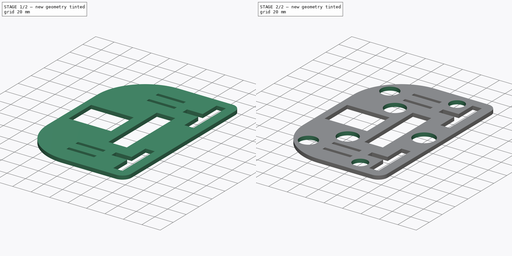
[diagram: build sequence overview — one tinted view per stage of 2, left to right]
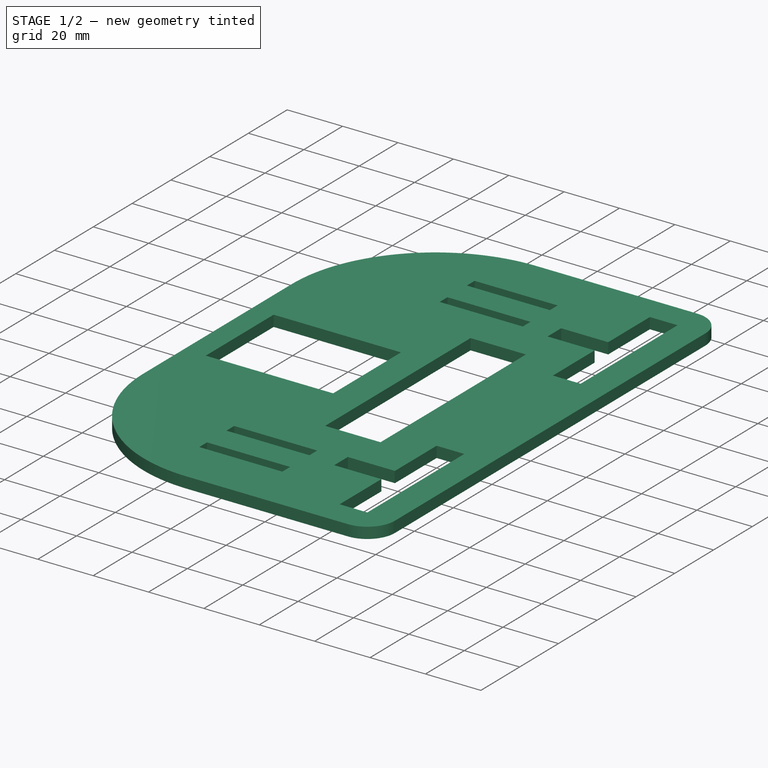
[diagram: stage 1 of 2 — iso view after this stage's code; geometry added in this stage tinted green]
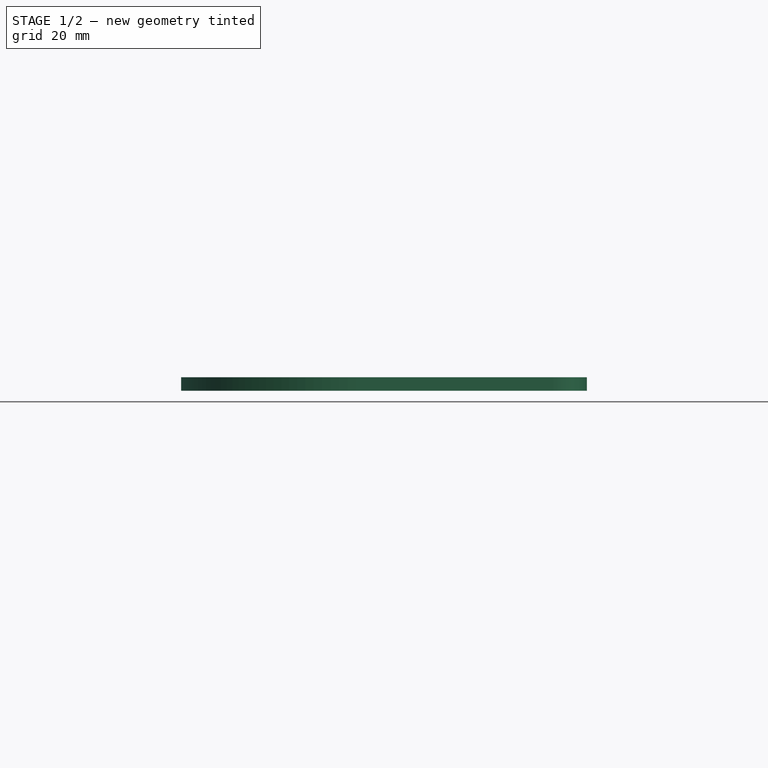
[diagram: stage 1 of 2 — front view after this stage's code; geometry added in this stage tinted green]
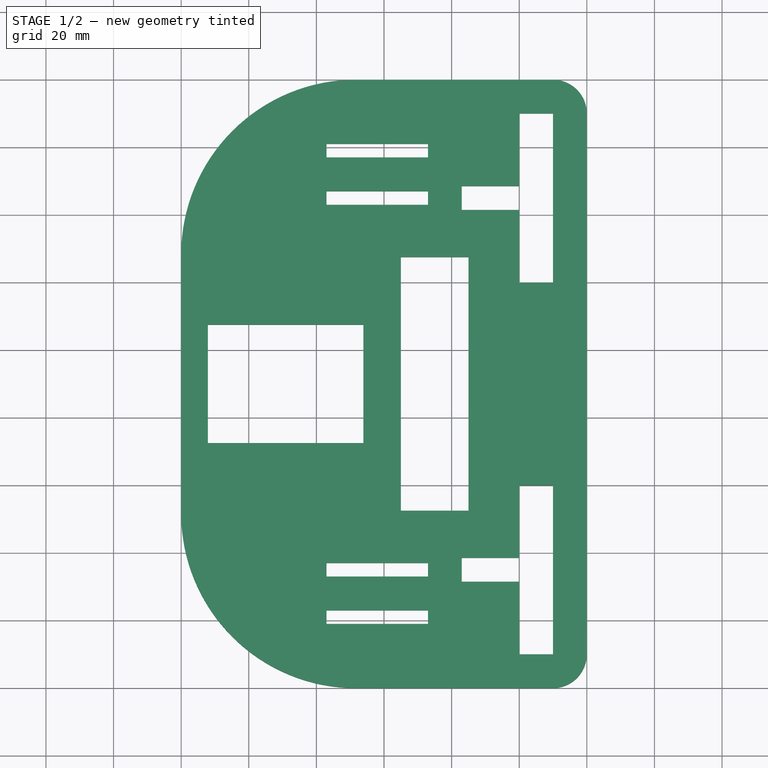
[diagram: stage 1 of 2 — top view after this stage's code; geometry added in this stage tinted green]
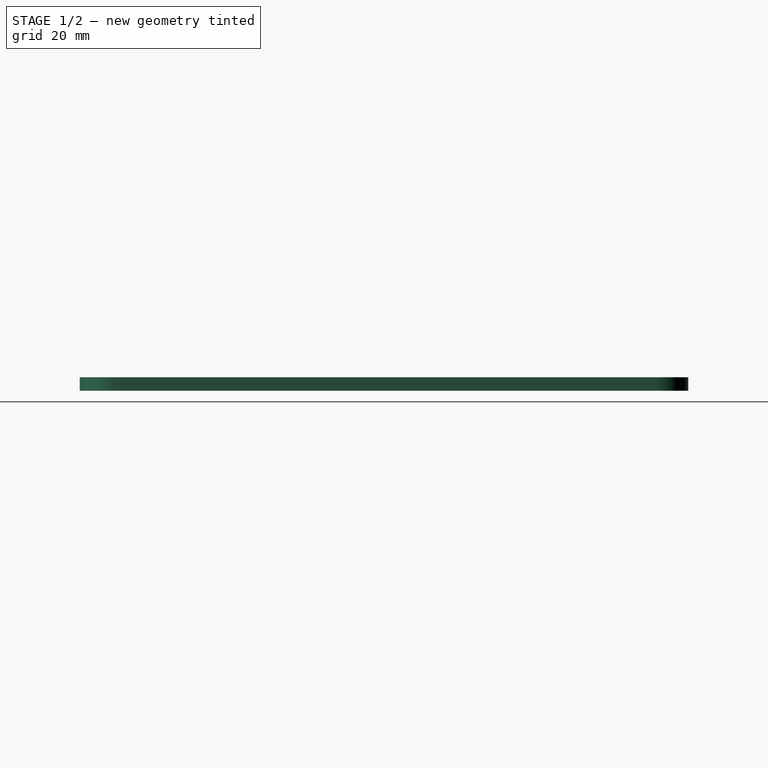
[diagram: stage 1 of 2 — right view after this stage's code; geometry added in this stage tinted green]
FCSTD DOCUMENT  (FreeCAD 0.21R33771 (Git))
Label: FRAME_BASE_T02
License: All rights reserved
LicenseURL: https://en.wikipedia.org/wiki/All_rights_reserved
objects: Sketcher::SketchObject×4, PartDesign::Pocket×2, PartDesign::Pad×1, PartDesign::Body×1
note: 11 computed .brp shape members not serialized (recipe doc carries the construction recipe); baked Part::Feature solids carry a one-line shape summary decoded from their .brp

FEATURE [Sketcher::SketchObject] Sketch  label="A4"
  FullyConstrained = true
  MapMode = 5
  sketch-geometry (4):
    g0: LineSegment StartX=0 StartY=0 StartZ=0 EndX=270 EndY=0 EndZ=0
    g1: LineSegment StartX=270 StartY=0 StartZ=0 EndX=270 EndY=180 EndZ=0
    g2: LineSegment StartX=270 StartY=180 StartZ=0 EndX=0 EndY=180 EndZ=0
    g3: LineSegment StartX=0 StartY=180 StartZ=0 EndX=0 EndY=0 EndZ=0
  constraints (12):
    c: Coincident(g0,g1)
    c: Coincident(g1,g2)
    c: Coincident(g2,g3)
    c: Coincident(g3,g0)
    c: Horizontal(g0)
    c: Horizontal(g2)
    c: Vertical(g1)
    c: Vertical(g3)
    c: PointOnObject(g0,g-2)
    c: DistanceX(g2,g2) = 270
    c: DistanceY(g3,g3) = 180
    c: PointOnObject(g0,g-1)
FEATURE [Sketcher::SketchObject] Sketch001  label="BASE"
  ExternalGeometry = -> [Sketch]
  FullyConstrained = false
  MapMode = 5
  sketch-geometry (57):
    g0: LineSegment StartX=100 StartY=60 StartZ=0 EndX=100 EndY=38.5 EndZ=0
    g1: LineSegment StartX=100 StartY=38.5 StartZ=0 EndX=83 EndY=38.5 EndZ=0
    g2: LineSegment StartX=83 StartY=38.5 StartZ=0 EndX=83 EndY=31.5 EndZ=0
    g3: LineSegment StartX=83 StartY=31.5 StartZ=0 EndX=100 EndY=31.5 EndZ=0
    g4: LineSegment StartX=100 StartY=31.5 StartZ=0 EndX=100 EndY=10 EndZ=0
    g5: LineSegment StartX=100 StartY=10 StartZ=0 EndX=110 EndY=10 EndZ=0
    g6: LineSegment StartX=110 StartY=10 StartZ=0 EndX=110 EndY=60 EndZ=0
    g7: LineSegment StartX=110 StartY=60 StartZ=0 EndX=100 EndY=60 EndZ=0
    g8: LineSegment StartX=100 StartY=120 StartZ=0 EndX=110 EndY=120 EndZ=0
    g9: LineSegment StartX=110 StartY=120 StartZ=0 EndX=110 EndY=170 EndZ=0
    g10: LineSegment StartX=110 StartY=170 StartZ=0 EndX=100 EndY=170 EndZ=0
    g11: LineSegment StartX=100 StartY=170 StartZ=0 EndX=100 EndY=148.5 EndZ=0
    g12: LineSegment StartX=100 StartY=148.5 StartZ=0 EndX=83 EndY=148.5 EndZ=0
    g13: LineSegment StartX=83 StartY=148.5 StartZ=0 EndX=83 EndY=141.5 EndZ=0
    g14: LineSegment StartX=83 StartY=141.5 StartZ=0 EndX=100 EndY=141.5 EndZ=0
    g15: LineSegment StartX=100 StartY=141.5 StartZ=0 EndX=100 EndY=120 EndZ=0
    g16: LineSegment StartX=0 StartY=90 StartZ=0 EndX=0 EndY=128.268 EndZ=0
    g17: LineSegment StartX=51.7316 StartY=180 StartZ=0 EndX=110 EndY=180 EndZ=0
    g18: LineSegment StartX=120 StartY=170 StartZ=0 EndX=120 EndY=10 EndZ=0
    g19: LineSegment StartX=110 StartY=0 StartZ=0 EndX=51.7316 EndY=0 EndZ=0
    g20: LineSegment StartX=0 StartY=51.7316 StartZ=0 EndX=0 EndY=90 EndZ=0
    g21: ArcOfCircle CenterX=51.7316 CenterY=128.268 CenterZ=0 NormalX=0 NormalY=0 NormalZ=1 AngleXU=0 Radius=51.7316 StartAngle=1.5708 EndAngle=3.14159
    g22: GeomPoint X=0 Y=180 Z=0
    g23: ArcOfCircle CenterX=51.7316 CenterY=51.7316 CenterZ=0 NormalX=0 NormalY=0 NormalZ=1 AngleXU=0 Radius=51.7316 StartAngle=3.14159 EndAngle=4.71239
    g24: GeomPoint X=0 Y=0 Z=0
    g25: ArcOfCircle CenterX=110 CenterY=170 CenterZ=0 NormalX=0 NormalY=0 NormalZ=1 AngleXU=0 Radius=10 StartAngle=-9e-16 EndAngle=1.5708
    g26: GeomPoint X=120 Y=180 Z=0
    g27: ArcOfCircle CenterX=110 CenterY=10 CenterZ=0 NormalX=0 NormalY=0 NormalZ=1 AngleXU=0 Radius=10 StartAngle=4.71239 EndAngle=6.28319
    g28: GeomPoint X=120 Y=0 Z=0
    g29: LineSegment StartX=73 StartY=37 StartZ=0 EndX=43 EndY=37 EndZ=0
    g30: LineSegment StartX=43 StartY=37 StartZ=0 EndX=43 EndY=33 EndZ=0
    g31: LineSegment StartX=43 StartY=33 StartZ=0 EndX=73 EndY=33 EndZ=0
    g32: LineSegment StartX=73 StartY=33 StartZ=0 EndX=73 EndY=35 EndZ=0
    g33: LineSegment StartX=73 StartY=35 StartZ=0 EndX=73 EndY=37 EndZ=0
    g34: LineSegment StartX=83 StartY=31.5 StartZ=0 EndX=73 EndY=35 EndZ=0
    g35: LineSegment StartX=73 StartY=35 StartZ=0 EndX=83 EndY=38.5 EndZ=0
    g36: LineSegment StartX=83 StartY=148.5 StartZ=0 EndX=73 EndY=145 EndZ=0
    g37: LineSegment StartX=83 StartY=141.5 StartZ=0 EndX=73 EndY=145 EndZ=0
    g38: LineSegment StartX=73 StartY=145 StartZ=0 EndX=73 EndY=147 EndZ=0
    g39: LineSegment StartX=73 StartY=143 StartZ=0 EndX=73 EndY=145 EndZ=0
    g40: LineSegment StartX=73 StartY=37 StartZ=0 EndX=73 EndY=145 EndZ=0
    g41: LineSegment StartX=73 StartY=147 StartZ=0 EndX=43 EndY=147 EndZ=0
    g42: LineSegment StartX=43 StartY=147 StartZ=0 EndX=43 EndY=143 EndZ=0
    g43: LineSegment StartX=43 StartY=143 StartZ=0 EndX=73 EndY=143 EndZ=0
    g44: LineSegment StartX=43 StartY=37 StartZ=0 EndX=43 EndY=143 EndZ=0
    g45: LineSegment StartX=43 StartY=161 StartZ=0 EndX=43 EndY=157 EndZ=0
    g46: LineSegment StartX=43 StartY=157 StartZ=0 EndX=73 EndY=157 EndZ=0
    g47: LineSegment StartX=73 StartY=157 StartZ=0 EndX=73 EndY=161 EndZ=0
    g48: LineSegment StartX=73 StartY=161 StartZ=0 EndX=43 EndY=161 EndZ=0
    g49: LineSegment StartX=43 StartY=23 StartZ=0 EndX=43 EndY=19 EndZ=0
    g50: LineSegment StartX=43 StartY=19 StartZ=0 EndX=73 EndY=19 EndZ=0
    g51: LineSegment StartX=73 StartY=19 StartZ=0 EndX=73 EndY=23 EndZ=0
    g52: LineSegment StartX=73 StartY=23 StartZ=0 EndX=43 EndY=23 EndZ=0
    g53: LineSegment StartX=43 StartY=23 StartZ=0 EndX=43 EndY=33 EndZ=0
    g54: LineSegment StartX=100 StartY=60 StartZ=0 EndX=100 EndY=90 EndZ=0
    g55: LineSegment StartX=100 StartY=90 StartZ=0 EndX=100 EndY=120 EndZ=0
    g56: LineSegment StartX=0 StartY=90 StartZ=0 EndX=100 EndY=90 EndZ=0
  constraints (155):
    c: Vertical(g0)
    c: Coincident(g1,g0)
    c: Coincident(g2,g1)
    c: Vertical(g2)
    c: Coincident(g3,g2)
    c: Horizontal(g3)
    c: Coincident(g4,g3)
    c: Vertical(g4)
    c: Coincident(g5,g4)
    c: Coincident(g6,g5)
    c: Vertical(g6)
    c: Coincident(g7,g6)
    c: Coincident(g7,g0)
    c: Horizontal(g7)
    c: Horizontal(g1)
    c: Horizontal(g5)
    c: Equal(g0,g4)
    c: Equal(g1,g3)
    c: DistanceY(g2,g2) = 7
    c: DistanceX(g1,g1) = 17
    c: DistanceX(g7,g7) = 10
    c: DistanceY(g6,g6) = 50
    c: Horizontal(g8)
    c: Coincident(g9,g8)
    c: Vertical(g9)
    c: PointOnObject(g10,g9)
    c: Horizontal(g10)
    c: Coincident(g11,g10)
    c: Vertical(g11)
    c: Coincident(g12,g11)
    c: Horizontal(g12)
    c: Coincident(g13,g12)
    c: Vertical(g13)
    c: Coincident(g14,g13)
    c: Horizontal(g14)
    c: Coincident(g15,g14)
    c: Vertical(g15)
    c: Equal(g15,g11)
    c: Equal(g14,g1)
    c: Equal(g8,g7)
    c: Equal(g13,g2)
    c: Vertical(g11,g14)
    c: PointOnObject(g9,g10)
    c: Equal(g6,g9)
    c: DistanceY(g0,g8) = 60
    c: Vertical(g16)
    c: Horizontal(g17)
    c: Vertical(g18)
    c: Horizontal(g19)
    c: Vertical(g20)
    c: DistanceX(g9,g26) = 10
    c: DistanceX(g24,g28) = 120
    c: DistanceY(g24,g22) = 180
    c: PointOnObject(g22,g16)
    c: PointOnObject(g22,g17)
    c: Tangent(g16,g21) = 1.5708
    c: Tangent(g17,g21) = 1.5708
    c: PointOnObject(g24,g20)
    c: PointOnObject(g24,g19)
    c: Tangent(g20,g23) = 1.5708
    c: Tangent(g19,g23) = 1.5708
    c: PointOnObject(g26,g17)
    c: PointOnObject(g26,g18)
    c: Tangent(g17,g25) = 1.5708
    c: Tangent(g18,g25) = 1.5708
    c: PointOnObject(g28,g19)
    c: PointOnObject(g28,g18)
    c: Tangent(g19,g27) = 1.5708
    c: Tangent(g18,g27) = 1.5708
    c: Equal(g20,g16)
    c: Equal(g25,g27)
    c: Radius(g27) = 10
    c: Horizontal(g29)
    c: Coincident(g30,g29)
    c: Vertical(g30)
    c: Coincident(g31,g30)
    c: Horizontal(g31)
    c: Coincident(g32,g31)
    c: Coincident(g33,g32)
    c: Coincident(g33,g29)
    c: Vertical(g32)
    c: Vertical(g33)
    c: Equal(g32,g33)
    c: Coincident(g34,g2)
    c: Coincident(g34,g32)
    c: Equal(g34,g35)
    c: Coincident(g35,g1)
    c: Coincident(g35,g32)
    c: DistanceY(g30,g30) = 4
    c: DistanceX(g31,g31) = 30
    c: DistanceX(g31,g2) = 10
    c: Coincident(g36,g12)
    c: Coincident(g37,g13)
    c: Coincident(g37,g36)
    c: Coincident(g38,g36)
    c: Vertical(g38)
    c: Coincident(g39,g36)
    c: Vertical(g39)
    c: Equal(g39,g38)
    c: Equal(g37,g36)
    c: Coincident(g40,g29)
    c: Vertical(g40)
    c: Vertical(g23,g21)
    c: Coincident(g40,g36)
    c: Coincident(g41,g38)
    c: Horizontal(g41)
    c: Coincident(g42,g41)
    c: Vertical(g42)
    c: Coincident(g43,g42)
    c: Coincident(g43,g39)
    c: Horizontal(g43)
    c: DistanceY(g42,g42) = 4
    c: Coincident(g44,g29)
    c: Coincident(g44,g42)
    c: Vertical(g44)
    c: Coincident(g45,g46)
    c: Coincident(g46,g47)
    c: Coincident(g47,g48)
    c: Coincident(g48,g45)
    c: Vertical(g45)
    c: Vertical(g47)
    c: Horizontal(g46)
    c: Horizontal(g48)
    c: Equal(g41,g46)
    c: Equal(g45,g42)
    c: Vertical(g45,g41)
    c: DistanceY(g41,g45) = 10
    c: Coincident(g49,g50)
    c: Coincident(g50,g51)
    c: Coincident(g51,g52)
    c: Coincident(g52,g49)
    c: Vertical(g49)
    c: Vertical(g51)
    c: Horizontal(g50)
    c: Horizontal(g52)
    c: Equal(g52,g31)
    c: Equal(g49,g30)
    c: Coincident(g53,g49)
    c: Coincident(g53,g30)
    c: Vertical(g53)
    c: DistanceY(g53,g53) = 10
    c: Coincident(g20,g16)
    c: PointOnObject(g19,g-1)
    c: PointOnObject(g16,g-2)
    c: Coincident(g54,g0)
    c: Vertical(g54)
    c: Coincident(g55,g54)
    c: Coincident(g55,g8)
    c: Vertical(g55)
    c: Equal(g55,g54)
    c: Coincident(g56,g16)
    c: Coincident(g56,g54)
    c: Horizontal(g56)
    c: Coincident(g15,g8)
    c: DistanceY(g44,g44) = 106
FEATURE [PartDesign::Pad] Pad
  Direction = (0,0,1)
  Length = 4
  Length2 = 10
  Profile = -> Sketch001
  ReferenceAxis = -> Sketch001 [N_Axis]
  Type = 0
FEATURE [Sketcher::SketchObject] Sketch002
  ExternalGeometry = -> [Pad]
  FullyConstrained = false
  MapMode = 5
  Placement = pos=(0,0,4) rot=(0,0,1;0rad)
  Support = -> [Pad]
  sketch-geometry (13):
    g0: LineSegment StartX=120 StartY=170 StartZ=0 EndX=146.961 EndY=90 EndZ=0
    g1: LineSegment StartX=146.961 StartY=90 StartZ=0 EndX=120 EndY=10 EndZ=0
    g2: LineSegment StartX=146.961 StartY=90 StartZ=0 EndX=0 EndY=90 EndZ=0
    g3: LineSegment StartX=85 StartY=52.5 StartZ=0 EndX=85 EndY=127.5 EndZ=0
    g4: LineSegment StartX=85 StartY=127.5 StartZ=0 EndX=65 EndY=127.5 EndZ=0
    g5: LineSegment StartX=65 StartY=127.5 StartZ=0 EndX=65 EndY=52.5 EndZ=0
    g6: LineSegment StartX=65 StartY=52.5 StartZ=0 EndX=85 EndY=52.5 EndZ=0
    g7: GeomPoint X=75 Y=90 Z=0
    g8: LineSegment StartX=7.89496 StartY=72.5 StartZ=0 EndX=7.89496 EndY=107.5 EndZ=0
    g9: LineSegment StartX=7.89496 StartY=107.5 StartZ=0 EndX=53.895 EndY=107.5 EndZ=0
    g10: LineSegment StartX=53.895 StartY=107.5 StartZ=0 EndX=53.895 EndY=72.5 EndZ=0
    g11: LineSegment StartX=53.895 StartY=72.5 StartZ=0 EndX=7.89496 EndY=72.5 EndZ=0
    g12: GeomPoint X=30.895 Y=90 Z=0
  constraints (32):
    c: Coincident(g0,g-3)
    c: Coincident(g1,g0)
    c: Coincident(g1,g-3)
    c: Equal(g1,g0)
    c: Coincident(g2,g0)
    c: PointOnObject(g2,g-2)
    c: Horizontal(g2)
    c: Coincident(g3,g4)
    c: Coincident(g4,g5)
    c: Coincident(g5,g6)
    c: Coincident(g6,g3)
    c: Horizontal(g4)
    c: Horizontal(g6)
    c: Vertical(g3)
    c: Vertical(g5)
    c: Symmetric(g4,g3,g7)
    c: PointOnObject(g7,g2)
    c: DistanceY(g3,g3) = 75
    c: DistanceX(g4,g4) = 20
    c: DistanceX(g2,g4) = 65
    c: Coincident(g8,g9)
    c: Coincident(g9,g10)
    c: Coincident(g10,g11)
    c: Coincident(g11,g8)
    c: Horizontal(g9)
    c: Horizontal(g11)
    c: Vertical(g8)
    c: Vertical(g10)
    c: Symmetric(g9,g8,g12)
    c: PointOnObject(g12,g2)
    c: DistanceX(g9,g9) = 46
    c: DistanceY(g10,g10) = 35
FEATURE [PartDesign::Pocket] Pocket
  BaseFeature = -> Pad
  Direction = (0,0,-1)
  Length = 5
  Length2 = 5
  Profile = -> Sketch002
  ReferenceAxis = -> Sketch002 [N_Axis]
  Type = 0
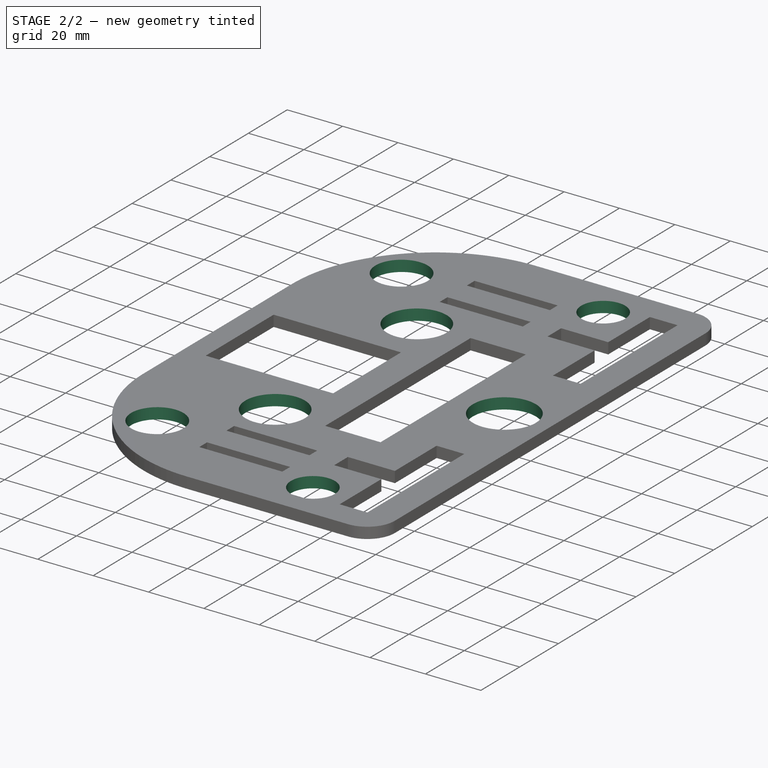
[diagram: stage 2 of 2 — iso view after this stage's code; geometry added in this stage tinted green]
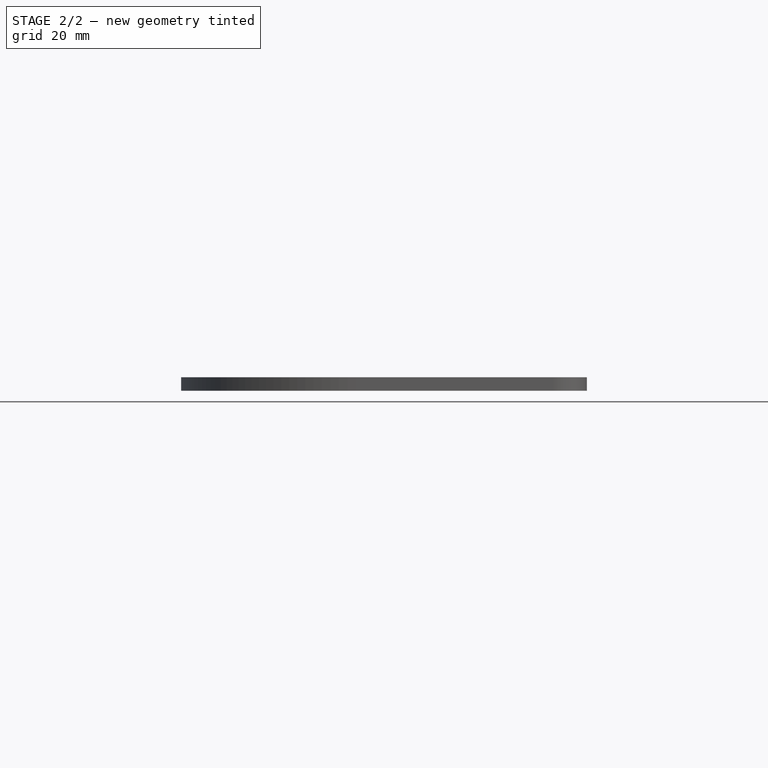
[diagram: stage 2 of 2 — front view after this stage's code; geometry added in this stage tinted green]
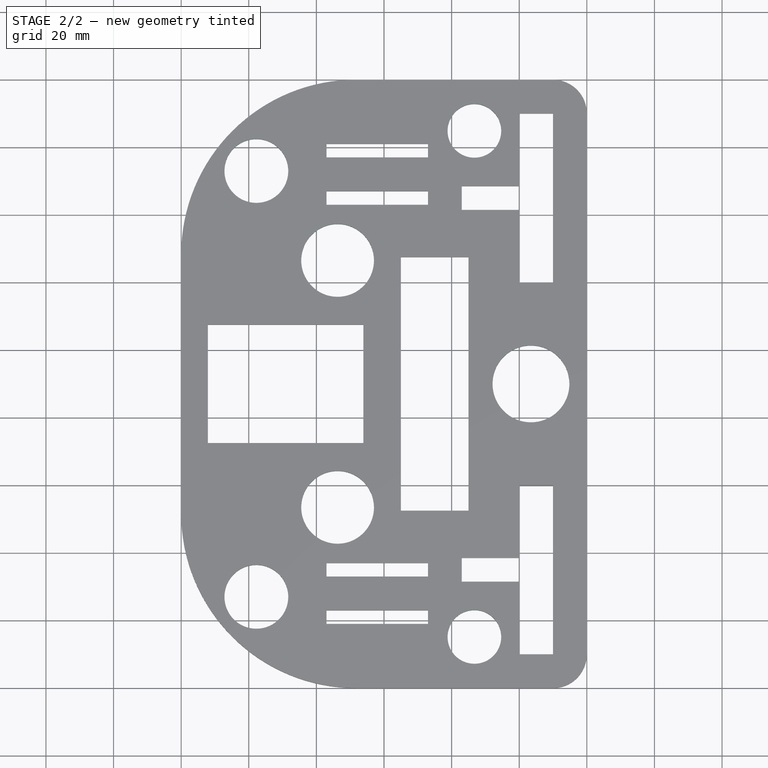
[diagram: stage 2 of 2 — top view after this stage's code; geometry added in this stage tinted green]
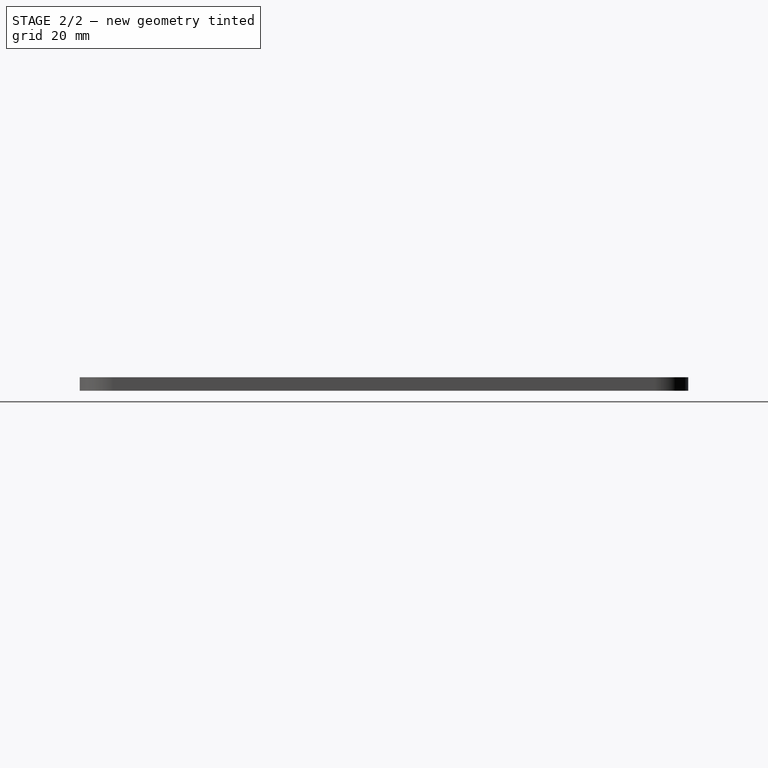
[diagram: stage 2 of 2 — right view after this stage's code; geometry added in this stage tinted green]
FEATURE [Sketcher::SketchObject] Sketch003
  ExternalGeometry = -> [Pocket]
  FullyConstrained = false
  MapMode = 5
  Placement = pos=(0,0,4) rot=(0,0,1;0rad)
  Support = -> [Pocket]
  sketch-geometry (15):
    g0: Circle CenterX=46.2745 CenterY=126.527 CenterZ=0 NormalX=0 NormalY=0 NormalZ=1 AngleXU=0 Radius=10.7567
    g1: Circle CenterX=46.2745 CenterY=53.4729 CenterZ=0 NormalX=0 NormalY=0 NormalZ=1 AngleXU=0 Radius=10.7567
    g2: Circle CenterX=103.473 CenterY=90 CenterZ=0 NormalX=0 NormalY=0 NormalZ=1 AngleXU=0 Radius=11.3628
    g3: Circle CenterX=86.7391 CenterY=164.862 CenterZ=0 NormalX=0 NormalY=0 NormalZ=1 AngleXU=0 Radius=7.93372
    g4: Circle CenterX=86.7391 CenterY=15.1381 CenterZ=0 NormalX=0 NormalY=0 NormalZ=1 AngleXU=0 Radius=7.93372
    g5: Circle CenterX=22.2391 CenterY=27.0036 CenterZ=0 NormalX=0 NormalY=0 NormalZ=1 AngleXU=0 Radius=9.43464
    g6: Circle CenterX=22.2391 CenterY=152.996 CenterZ=0 NormalX=0 NormalY=0 NormalZ=1 AngleXU=0 Radius=9.43464
    g7: LineSegment StartX=110 StartY=180 StartZ=0 EndX=208.134 EndY=90 EndZ=0
    g8: LineSegment StartX=110 StartY=0 StartZ=0 EndX=208.134 EndY=90 EndZ=0
    g9: LineSegment StartX=86.7391 StartY=164.862 StartZ=0 EndX=86.7391 EndY=90 EndZ=0
    g10: LineSegment StartX=86.7391 StartY=90 StartZ=0 EndX=86.7391 EndY=15.1381 EndZ=0
    g11: LineSegment StartX=46.2745 StartY=53.4729 StartZ=0 EndX=46.2745 EndY=90 EndZ=0
    g12: LineSegment StartX=46.2745 StartY=90 StartZ=0 EndX=46.2745 EndY=126.527 EndZ=0
    g13: LineSegment StartX=22.2391 StartY=152.996 StartZ=0 EndX=22.2391 EndY=90 EndZ=0
    g14: LineSegment StartX=22.2391 StartY=27.0036 StartZ=0 EndX=22.2391 EndY=90 EndZ=0
  constraints (29):
    c: Coincident(g7,g-3)
    c: Coincident(g8,g-4)
    c: Coincident(g8,g7)
    c: Coincident(g9,g3)
    c: Vertical(g9)
    c: Coincident(g10,g9)
    c: Coincident(g10,g4)
    c: Vertical(g10)
    c: Coincident(g11,g1)
    c: Vertical(g11)
    c: Coincident(g12,g11)
    c: Coincident(g12,g0)
    c: Coincident(g13,g6)
    c: Coincident(g14,g5)
    c: Coincident(g14,g13)
    c: Vertical(g14)
    c: Horizontal(g9,g7)
    c: Horizontal(g9,g11)
    c: Horizontal(g11,g13)
    c: Vertical(g12)
    c: Vertical(g13)
    c: Equal(g13,g14)
    c: Equal(g12,g11)
    c: Equal(g10,g9)
    c: Equal(g7,g8)
    c: Horizontal(g2,g7)
    c: Equal(g5,g6)
    c: Equal(g1,g0)
    c: Equal(g4,g3)
FEATURE [PartDesign::Pocket] Pocket001
  BaseFeature = -> Pocket
  Direction = (0,0,-1)
  Length = 5
  Length2 = 5
  Profile = -> Sketch003
  ReferenceAxis = -> Sketch003 [N_Axis]
  Type = 0
FEATURE [PartDesign::Body] Body
  Group = -> [Sketch,Sketch001,Pad,Sketch002,Pocket,Sketch003,Pocket001]
  Origin = -> Origin
  Tip = -> Pocket001
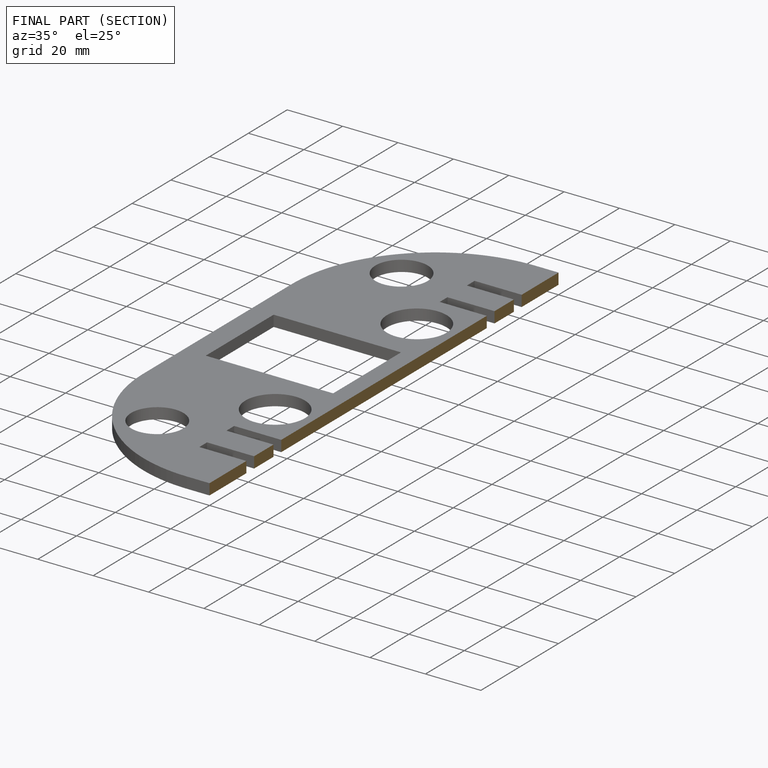
[diagram: finished part — half-section view (interior)]
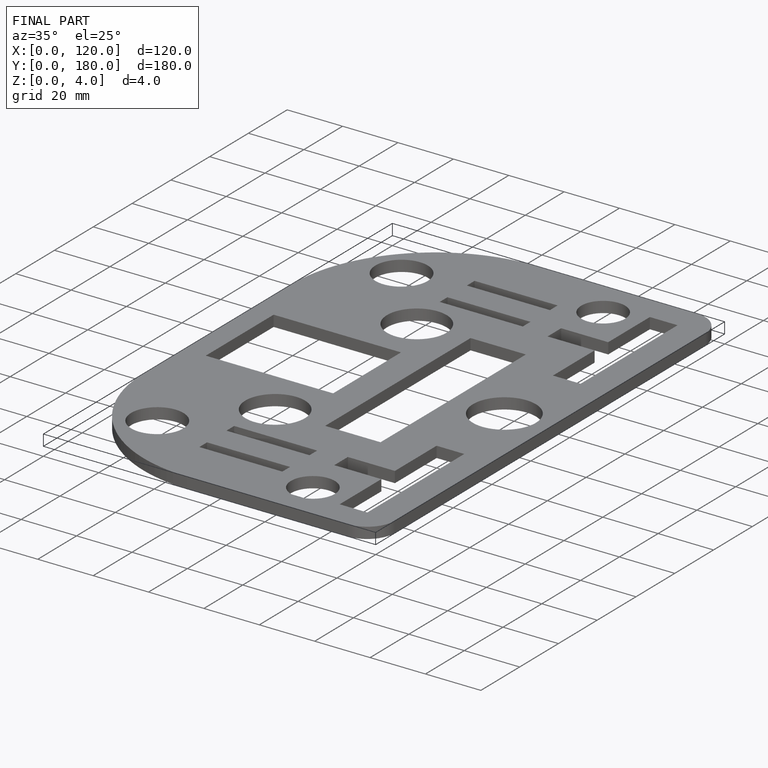
[diagram: finished part — iso view with bounding-box wireframe]
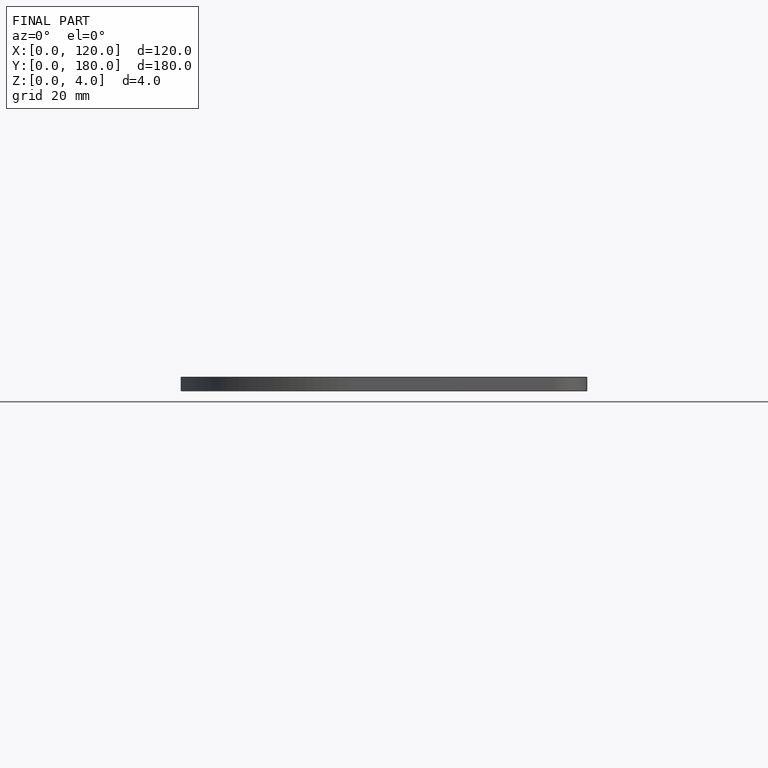
[diagram: finished part — front view with bounding-box wireframe]
